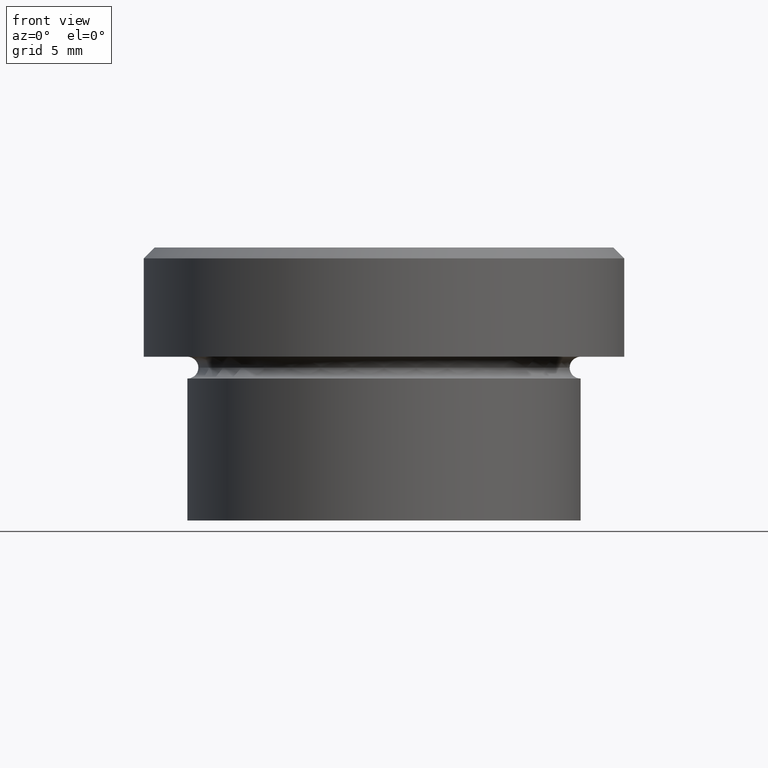
[diagram: clean part render]
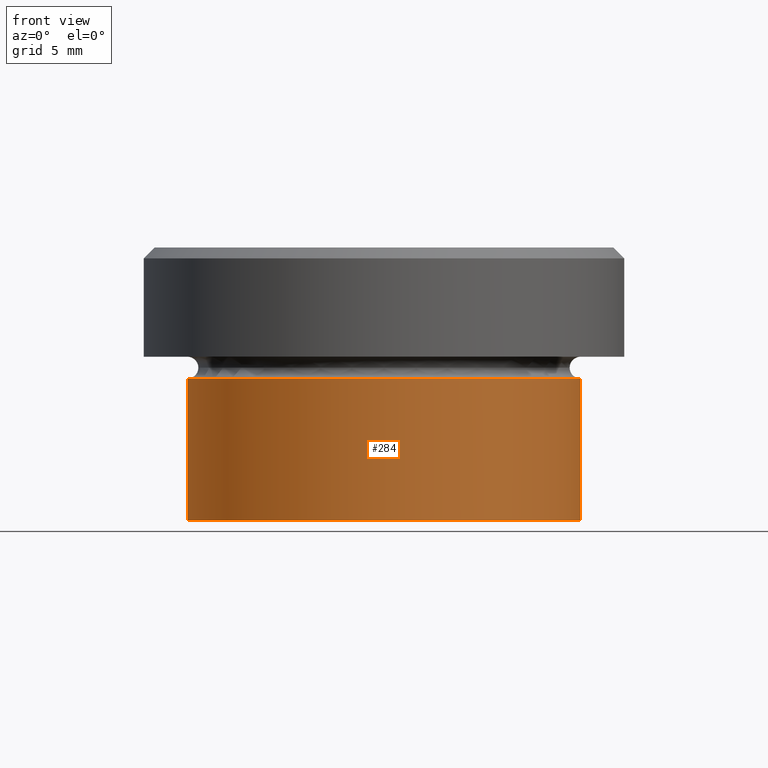
[diagram: same view with one face highlighted and labeled with its STEP entity id]
A machine part, front view. The second image highlights one B-rep face of the part: STEP entity #284.
In plain terms, the highlighted cylindrical surface (partial cylindrical patch) has radius 9 mm, axis along (-0, -0, 1).
Its self-contained STEP definition (entity closure, byte-faithful):
#14 = CARTESIAN_POINT ( 'NONE',  ( -9.000000000000000000, 1.102182119232617714E-15, -6.000000000000000000 ) ) ;
#21 = EDGE_CURVE ( 'NONE', #281, #256, #268, .T. ) ;
#31 = AXIS2_PLACEMENT_3D ( 'NONE', #262, #364, #203 ) ;
#36 = FACE_OUTER_BOUND ( 'NONE', #94, .T. ) ;
#39 = LINE ( 'NONE', #201, #253 ) ;
#55 = CARTESIAN_POINT ( 'NONE',  ( 9.000000000000000000, 0.000000000000000000, -6.000000000000000000 ) ) ;
#77 = CARTESIAN_POINT ( 'NONE',  ( 9.000000000000000000, 0.000000000000000000, -12.50000000000000000 ) ) ;
#88 = DIRECTION ( 'NONE',  ( 1.000000000000000000, 0.000000000000000000, 0.000000000000000000 ) ) ;
#94 = EDGE_LOOP ( 'NONE', ( #139, #111, #109, #393 ) ) ;
#102 = EDGE_CURVE ( 'NONE', #281, #190, #389, .T. ) ;
#103 = CARTESIAN_POINT ( 'NONE',  ( 0.000000000000000000, 0.000000000000000000, -6.000000000000000000 ) ) ;
#109 = ORIENTED_EDGE ( 'NONE', *, *, #178, .T. ) ;
#111 = ORIENTED_EDGE ( 'NONE', *, *, #21, .T. ) ;
#123 = DIRECTION ( 'NONE',  ( -0.000000000000000000, -0.000000000000000000, 1.000000000000000000 ) ) ;
#139 = ORIENTED_EDGE ( 'NONE', *, *, #102, .F. ) ;
#143 = CARTESIAN_POINT ( 'NONE',  ( -9.000000000000000000, 1.102182119232617714E-15, -12.50000000000000000 ) ) ;
#170 = CYLINDRICAL_SURFACE ( 'NONE', #31, 9.000000000000000000 ) ;
#175 = CIRCLE ( 'NONE', #188, 9.000000000000000000 ) ;
#178 = EDGE_CURVE ( 'NONE', #256, #233, #39, .T. ) ;
#188 = AXIS2_PLACEMENT_3D ( 'NONE', #103, #350, #313 ) ;
#190 = VERTEX_POINT ( 'NONE', #14 ) ;
#201 = CARTESIAN_POINT ( 'NONE',  ( 9.000000000000000000, 0.000000000000000000, 0.000000000000000000 ) ) ;
#203 = DIRECTION ( 'NONE',  ( 1.000000000000000000, 0.000000000000000000, 0.000000000000000000 ) ) ;
#226 = VECTOR ( 'NONE', #327, 1000.000000000000000 ) ;
#233 = VERTEX_POINT ( 'NONE', #55 ) ;
#234 = CARTESIAN_POINT ( 'NONE',  ( -9.000000000000000000, 1.102182119232617714E-15, 0.000000000000000000 ) ) ;
#253 = VECTOR ( 'NONE', #260, 1000.000000000000000 ) ;
#256 = VERTEX_POINT ( 'NONE', #77 ) ;
#260 = DIRECTION ( 'NONE',  ( -0.000000000000000000, -0.000000000000000000, 1.000000000000000000 ) ) ;
#262 = CARTESIAN_POINT ( 'NONE',  ( 0.000000000000000000, 0.000000000000000000, 0.000000000000000000 ) ) ;
#268 = CIRCLE ( 'NONE', #276, 9.000000000000000000 ) ;
#276 = AXIS2_PLACEMENT_3D ( 'NONE', #299, #123, #88 ) ;
#281 = VERTEX_POINT ( 'NONE', #143 ) ;
#284 = ADVANCED_FACE ( 'NONE', ( #36 ), #170, .T. ) ;
#299 = CARTESIAN_POINT ( 'NONE',  ( 0.000000000000000000, 0.000000000000000000, -12.50000000000000000 ) ) ;
#312 = EDGE_CURVE ( 'NONE', #190, #233, #175, .T. ) ;
#313 = DIRECTION ( 'NONE',  ( 1.000000000000000000, 0.000000000000000000, 0.000000000000000000 ) ) ;
#327 = DIRECTION ( 'NONE',  ( -0.000000000000000000, -0.000000000000000000, 1.000000000000000000 ) ) ;
#350 = DIRECTION ( 'NONE',  ( -0.000000000000000000, -0.000000000000000000, 1.000000000000000000 ) ) ;
#364 = DIRECTION ( 'NONE',  ( -0.000000000000000000, -0.000000000000000000, 1.000000000000000000 ) ) ;
#389 = LINE ( 'NONE', #234, #226 ) ;
#393 = ORIENTED_EDGE ( 'NONE', *, *, #312, .F. ) ;